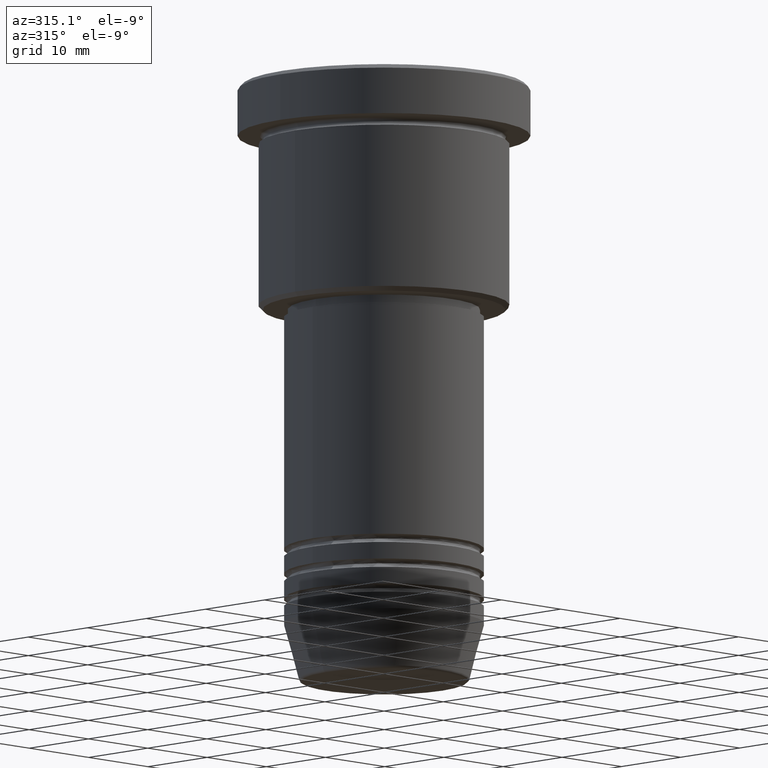
[diagram: clean part render]
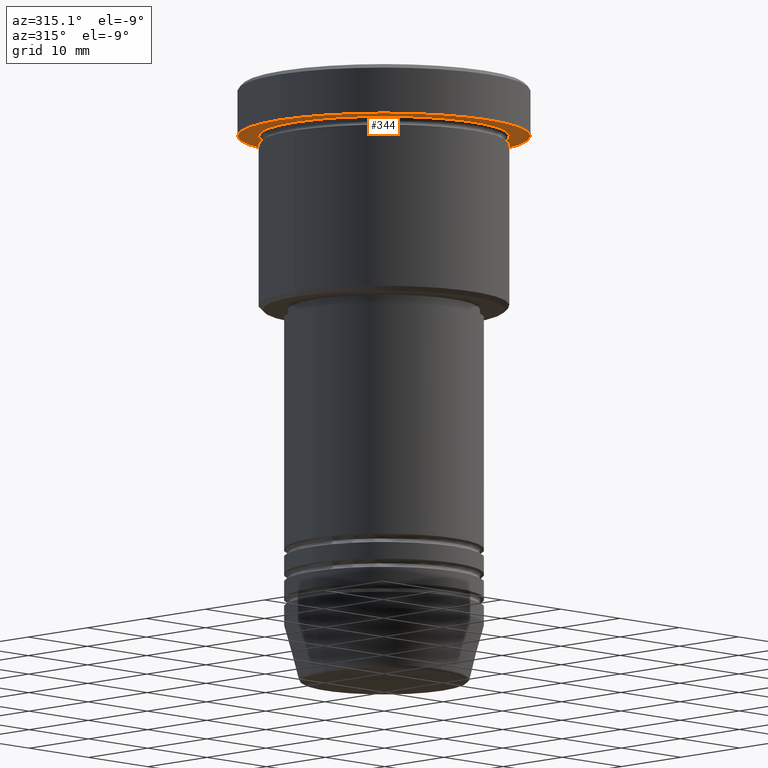
[diagram: same view with one face highlighted and labeled with its STEP entity id]
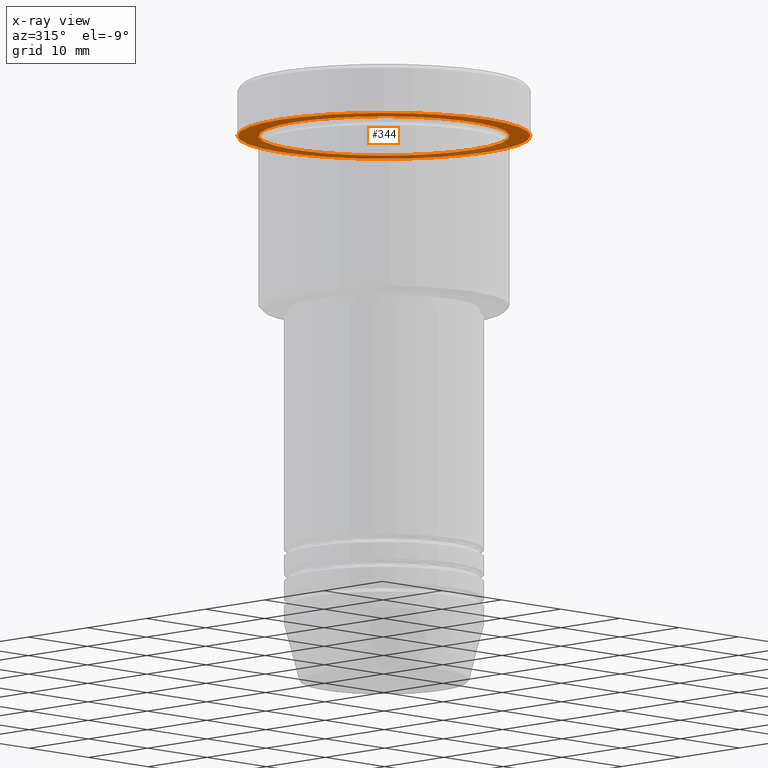
[diagram: x-ray of the same camera — body ghosted, the highlighted face saturated]
A machine part, auxiliary view. The second image highlights one B-rep face of the part: STEP entity #344.
The next image is the same camera in x-ray: the body ghosted, the highlighted face saturated — about 37% of this face is hidden behind the body in this view.
In plain terms, the highlighted planar face has unit normal (0, 0, -1).
Its self-contained STEP definition (entity closure, byte-faithful):
#9 = AXIS2_PLACEMENT_3D ( 'NONE', #19, #1115, #1132 ) ;
#19 = CARTESIAN_POINT ( 'NONE',  ( 0.000000000000000000, 0.000000000000000000, -5.999999999999995559 ) ) ;
#70 = CIRCLE ( 'NONE', #567, 15.00000000000000000 ) ;
#93 = VERTEX_POINT ( 'NONE', #680 ) ;
#124 = CIRCLE ( 'NONE', #9, 17.50000000000000000 ) ;
#198 = CARTESIAN_POINT ( 'NONE',  ( 0.000000000000000000, 0.000000000000000000, -5.999999999999995559 ) ) ;
#234 = CARTESIAN_POINT ( 'NONE',  ( 0.000000000000000000, 0.000000000000000000, -5.999999999999995559 ) ) ;
#244 = CIRCLE ( 'NONE', #1021, 17.50000000000000000 ) ;
#278 = EDGE_CURVE ( 'NONE', #363, #539, #244, .T. ) ;
#296 = FACE_OUTER_BOUND ( 'NONE', #600, .T. ) ;
#344 = ADVANCED_FACE ( 'NONE', ( #934, #296 ), #1016, .T. ) ;
#360 = DIRECTION ( 'NONE',  ( -1.000000000000000000, 0.000000000000000000, 0.000000000000000000 ) ) ;
#363 = VERTEX_POINT ( 'NONE', #1108 ) ;
#397 = ORIENTED_EDGE ( 'NONE', *, *, #960, .T. ) ;
#539 = VERTEX_POINT ( 'NONE', #1168 ) ;
#567 = AXIS2_PLACEMENT_3D ( 'NONE', #234, #1047, #592 ) ;
#577 = ORIENTED_EDGE ( 'NONE', *, *, #278, .F. ) ;
#592 = DIRECTION ( 'NONE',  ( -1.000000000000000000, 0.000000000000000000, 0.000000000000000000 ) ) ;
#600 = EDGE_LOOP ( 'NONE', ( #640, #577 ) ) ;
#640 = ORIENTED_EDGE ( 'NONE', *, *, #1166, .F. ) ;
#645 = EDGE_LOOP ( 'NONE', ( #397, #976 ) ) ;
#661 = DIRECTION ( 'NONE',  ( -1.000000000000000000, 0.000000000000000000, -0.000000000000000000 ) ) ;
#667 = CARTESIAN_POINT ( 'NONE',  ( 0.000000000000000000, 17.50000000000000000, -5.999999999999995559 ) ) ;
#680 = CARTESIAN_POINT ( 'NONE',  ( 15.00000000000000000, 1.836970198721029589E-15, -5.999999999999994671 ) ) ;
#691 = AXIS2_PLACEMENT_3D ( 'NONE', #667, #921, #661 ) ;
#853 = VERTEX_POINT ( 'NONE', #940 ) ;
#921 = DIRECTION ( 'NONE',  ( 0.000000000000000000, 0.000000000000000000, -1.000000000000000000 ) ) ;
#934 = FACE_BOUND ( 'NONE', #645, .T. ) ;
#940 = CARTESIAN_POINT ( 'NONE',  ( -15.00000000000000000, 0.000000000000000000, -5.999999999999994671 ) ) ;
#960 = EDGE_CURVE ( 'NONE', #853, #93, #70, .T. ) ;
#976 = ORIENTED_EDGE ( 'NONE', *, *, #1032, .T. ) ;
#990 = DIRECTION ( 'NONE',  ( -0.000000000000000000, -0.000000000000000000, 1.000000000000000000 ) ) ;
#1016 = PLANE ( 'NONE',  #691 ) ;
#1021 = AXIS2_PLACEMENT_3D ( 'NONE', #198, #1124, #1030 ) ;
#1030 = DIRECTION ( 'NONE',  ( 1.000000000000000000, 0.000000000000000000, 0.000000000000000000 ) ) ;
#1032 = EDGE_CURVE ( 'NONE', #93, #853, #1177, .T. ) ;
#1047 = DIRECTION ( 'NONE',  ( -0.000000000000000000, -0.000000000000000000, 1.000000000000000000 ) ) ;
#1069 = CARTESIAN_POINT ( 'NONE',  ( 0.000000000000000000, 0.000000000000000000, -5.999999999999995559 ) ) ;
#1108 = CARTESIAN_POINT ( 'NONE',  ( -17.50000000000000000, 2.143131898507868248E-15, -5.999999999999995559 ) ) ;
#1115 = DIRECTION ( 'NONE',  ( -0.000000000000000000, -0.000000000000000000, 1.000000000000000000 ) ) ;
#1120 = AXIS2_PLACEMENT_3D ( 'NONE', #1069, #990, #360 ) ;
#1124 = DIRECTION ( 'NONE',  ( -0.000000000000000000, -0.000000000000000000, 1.000000000000000000 ) ) ;
#1132 = DIRECTION ( 'NONE',  ( 1.000000000000000000, 0.000000000000000000, 0.000000000000000000 ) ) ;
#1166 = EDGE_CURVE ( 'NONE', #539, #363, #124, .T. ) ;
#1168 = CARTESIAN_POINT ( 'NONE',  ( 17.50000000000000000, 0.000000000000000000, -5.999999999999995559 ) ) ;
#1177 = CIRCLE ( 'NONE', #1120, 15.00000000000000000 ) ;